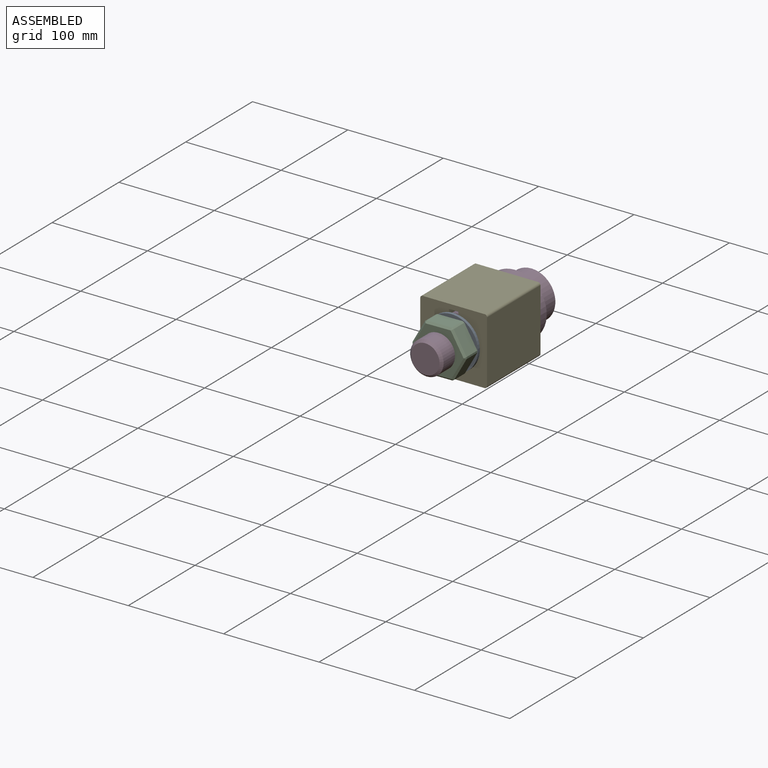
[diagram: assembled view]
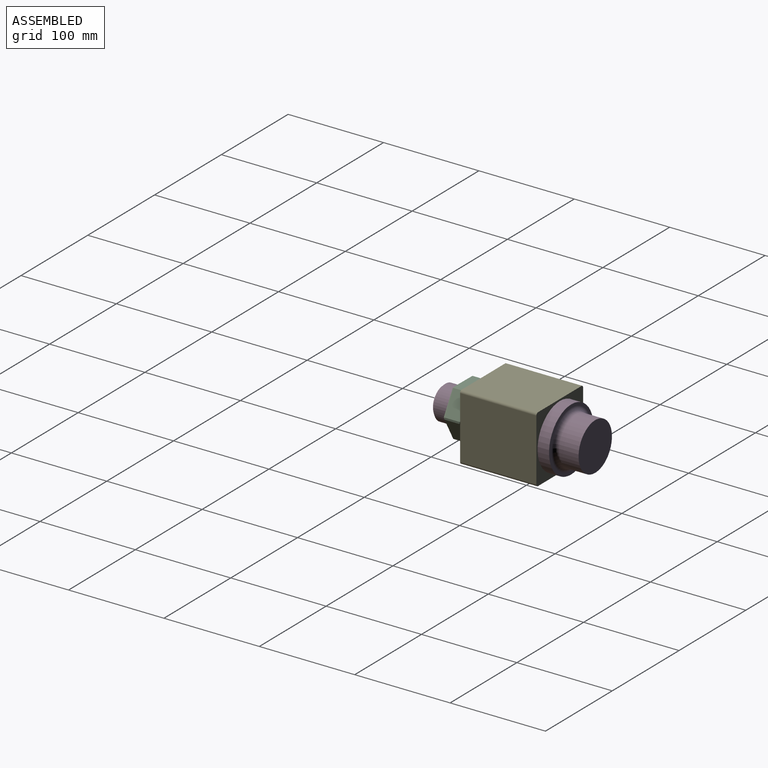
[diagram: assembled view, second angle]
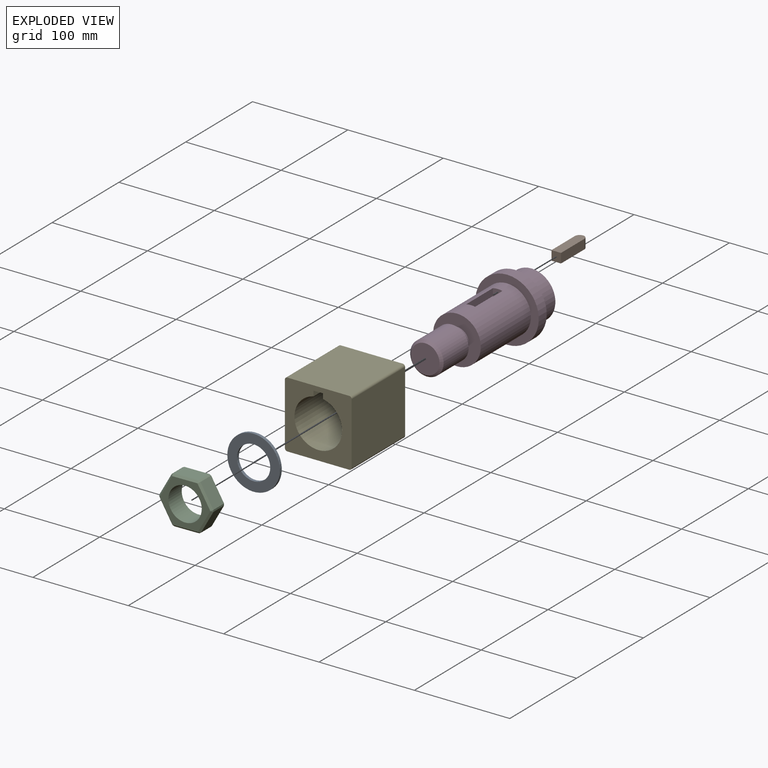
[diagram: exploded view]
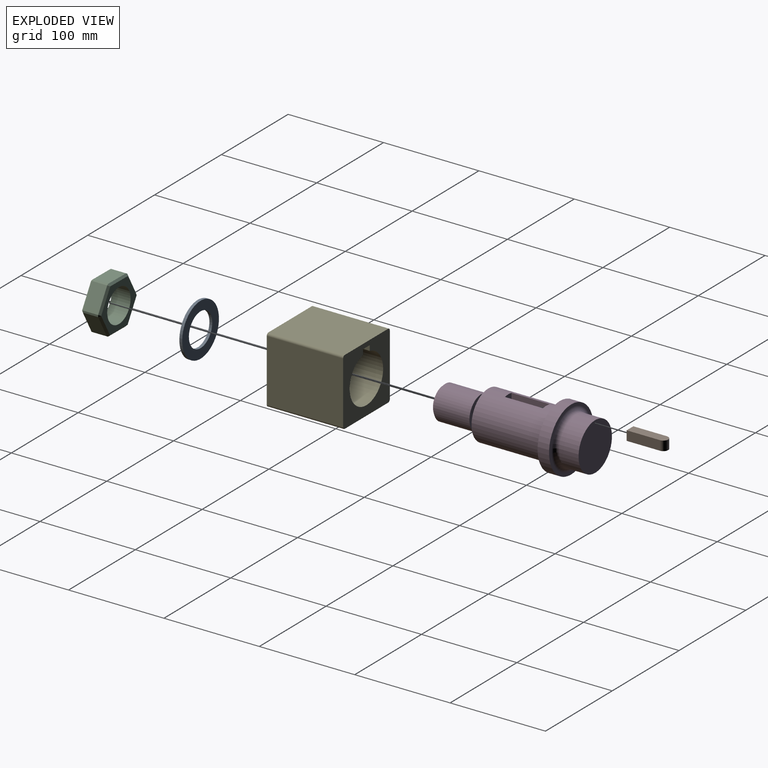
[diagram: exploded view, second angle]
ASSEMBLY  parts=5 mates=10
PART A: 4 faces, bbox 55x55x3 mm
  f0: cylinder r=17.5mm len=35mm, axis (0,0,-1), area 329.9mm2, adj f2,f3
  f1: cylinder r=27.5mm len=55mm, axis (0,0,-1), area 518.4mm2, adj f2,f3
  f2: plane 55x55mm, normal (0,0,1), area 1413.7mm2, adj f0,f1
  f3: plane 55x55mm, normal (0,0,-1), area 1413.7mm2, adj f0,f1
PART B: 6 faces, bbox 10x40x10 mm
  f0: plane 35x10mm, normal (1,0,0), area 350mm2, adj f1,f3,f4,f5
  f1: plane 10x10mm, normal (0,1,0), area 100mm2, adj f0,f2,f3,f4
  f2: plane 35x10mm, normal (-1,0,0), area 350mm2, adj f1,f3,f4,f5
  f3: plane 40x10mm, normal (0,0,1), area 389.3mm2, adj f0,f1,f2,f5
  f4: plane 40x10mm, normal (0,0,-1), area 389.3mm2, adj f0,f1,f2,f5
  f5: cylinder r=5mm len=10mm, axis (0,0,-1), area 157.1mm2, adj f0,f2,f3,f4
PART C: 39 faces, bbox 56.6x50.3x20 mm
  f0: plane 22.87x16mm, normal (0.86,-0.51,0), area 424.9mm2, adj f14,f23,f24,f25
  f1: plane 23.13x16mm, normal (0.87,0.49,0), area 424.9mm2, adj f9,f13,f14,f15
  f2: plane 26.56x16mm, normal (0.01,1,0), area 424.9mm2, adj f9,f12,f16,f17
  f3: plane 22.87x16mm, normal (-0.86,0.51,0), area 424.9mm2, adj f17,f22,f26,f27
  f4: plane 23.13x16mm, normal (-0.87,-0.49,0), area 424.9mm2, adj f27,f32,f35,f38
  f5: cylinder r=17.5mm len=35mm, axis (0,0,-1), area 2199.1mm2, adj f7,f8
  f6: plane 26.56x16mm, normal (-0.01,-1,0), area 424.9mm2, adj f24,f33,f34,f38
  f7: plane 53.11x46.27mm, normal (0,0,1), area 870.4mm2, adj f5,f12,f13,f22,f23,f32,f33
  f8: plane 53.11x46.27mm, normal (0,0,-1), area 870.4mm2, adj f5,f15,f16,f25,f26,f34,f35
  f9: plane 16x1.72mm, normal (0.51,0.86,0), area 32mm2, adj f1,f2,f10,f11
  f10: plane 2x2mm, normal (0.38,0.65,0.65), area 2.6mm2, adj f9,f12,f13
  f11: plane 2x2mm, normal (0.38,0.65,-0.65), area 2.6mm2, adj f9,f15,f16
  f12: plane 26.58x2.27mm, normal (0.01,0.71,0.71), area 75.1mm2, adj f2,f7,f10,f18
  f13: plane 24.12x14.79mm, normal (0.62,0.35,0.71), area 75.1mm2, adj f1,f7,f10,f19
  f14: plane 16x2mm, normal (1,-0.01,0), area 32mm2, adj f0,f1,f19,f20
  f15: plane 24.12x14.79mm, normal (0.62,0.35,-0.71), area 75.1mm2, adj f1,f8,f11,f20
  f16: plane 26.58x2.27mm, normal (0.01,0.71,-0.71), area 75.1mm2, adj f2,f8,f11,f21
  f17: plane 16x1.74mm, normal (-0.49,0.87,0), area 32mm2, adj f2,f3,f18,f21
  f18: plane 2x2mm, normal (-0.37,0.66,0.65), area 2.6mm2, adj f12,f17,f22
  f19: plane 2x2mm, normal (0.76,-0.01,0.65), area 2.6mm2, adj f13,f14,f23
  f20: plane 2x2mm, normal (0.76,-0.01,-0.65), area 2.6mm2, adj f14,f15,f25
  f21: plane 2x2mm, normal (-0.37,0.66,-0.65), area 2.6mm2, adj f16,f17,f26
  f22: plane 23.88x15.23mm, normal (-0.61,0.36,0.71), area 75.1mm2, adj f3,f7,f18,f28
  f23: plane 23.88x15.23mm, normal (0.61,-0.36,0.71), area 75.1mm2, adj f0,f7,f19,f29
  f24: plane 16x1.74mm, normal (0.49,-0.87,0), area 32mm2, adj f0,f6,f29,f30
  f25: plane 23.88x15.23mm, normal (0.61,-0.36,-0.71), area 75.1mm2, adj f0,f8,f20,f30
  f26: plane 23.88x15.23mm, normal (-0.61,0.36,-0.71), area 75.1mm2, adj f3,f8,f21,f31
  f27: plane 16x2mm, normal (-1,0.01,0), area 32mm2, adj f3,f4,f28,f31
  f28: plane 2x2mm, normal (-0.76,0.01,0.65), area 2.6mm2, adj f22,f27,f32
  f29: plane 2x2mm, normal (0.37,-0.66,0.65), area 2.6mm2, adj f23,f24,f33
  f30: plane 2x2mm, normal (0.37,-0.66,-0.65), area 2.6mm2, adj f24,f25,f34
  f31: plane 2x2mm, normal (-0.76,0.01,-0.65), area 2.6mm2, adj f26,f27,f35
  f32: plane 24.12x14.79mm, normal (-0.62,-0.35,0.71), area 75.1mm2, adj f4,f7,f28,f36
  f33: plane 26.58x2.27mm, normal (-0.01,-0.71,0.71), area 75.1mm2, adj f6,f7,f29,f36
  f34: plane 26.58x2.27mm, normal (-0.01,-0.71,-0.71), area 75.1mm2, adj f6,f8,f30,f37
  f35: plane 24.12x14.79mm, normal (-0.62,-0.35,-0.71), area 75.1mm2, adj f4,f8,f31,f37
  f36: plane 2x2mm, normal (-0.38,-0.65,0.65), area 2.6mm2, adj f32,f33,f38
  f37: plane 2x2mm, normal (-0.38,-0.65,-0.65), area 2.6mm2, adj f34,f35,f38
  f38: plane 16x1.72mm, normal (-0.51,-0.86,0), area 32mm2, adj f4,f6,f36,f37
PART D: 18 faces, bbox 72.6x72.6x159.5 mm
  f0: cylinder r=25mm len=75mm, axis (0,0,-1), area 11378.3mm2, adj f1,f4,f13,f14,f15,f16
  f1: plane 50x50mm, normal (0,0,1), area 1472.6mm2, adj f0,f8
  f2: cylinder r=33.21mm len=66.43mm, axis (0,0,1), area 2504.3mm2, adj f3,f4
  f3: plane 66.43x66.43mm, normal (0,0,-1), area 638.4mm2, adj f2,f7
  f4: plane 66.43x66.43mm, normal (0,0,1), area 1502.3mm2, adj f0,f2
  f5: cylinder r=25mm len=50mm, axis (0,0,1), area 3141.6mm2, adj f6,f7
  f6: plane 50x50mm, normal (0,0,-1), area 1963.5mm2, adj f5
  f7: torus R=30mm, axis (0,0,-1), area 1323.4mm2, adj f3,f5
  f8: cylinder r=12.5mm len=25mm, axis (0,0,-1), area 589mm2, adj f1,f11
  f9: cylinder r=17.5mm len=37.5mm, axis (0,0,-1), area 4123.3mm2, adj f11,f12
  f10: plane 30x30mm, normal (0,0,1), area 706.9mm2, adj f12
  f11: plane 35x35mm, normal (0,0,-1), area 471.2mm2, adj f8,f9
  f12: cone r=15mm half-angle=45deg, axis (0,0,-1), area 361mm2, adj f9,f10
  f13: plane 10x7.99mm, normal (0,0,1), area 78.2mm2, adj f0,f15,f16,f17
  f14: plane 10x7.99mm, normal (0,0,-1), area 78.2mm2, adj f0,f15,f16,f17
  f15: plane 40x7.49mm, normal (0,-1,0), area 299.4mm2, adj f0,f13,f14,f17
  f16: plane 40x7.49mm, normal (0,1,0), area 299.4mm2, adj f0,f13,f14,f17
  f17: plane 40x10mm, normal (1,0,0), area 400mm2, adj f13,f14,f15,f16
PART E: 14 faces, bbox 70x80x70 mm
  f0: plane 80x10mm, normal (0,0,-1), area 800mm2, adj f1,f7,f8,f9
  f1: plane 80x5.51mm, normal (-1,0,0), area 440.4mm2, adj f0,f2,f8,f9
  f2: cylinder r=25mm len=80mm, axis (0,1,0), area 11760.9mm2, adj f1,f7,f8,f9
  f3: plane 80x65mm, normal (1,0,0), area 5200mm2, adj f8,f9,f10,f13
  f4: plane 80x65mm, normal (0,0,1), area 5200mm2, adj f8,f9,f10,f11
  f5: plane 80x65mm, normal (-1,0,0), area 5200mm2, adj f8,f9,f11,f12
  f6: plane 80x65mm, normal (0,0,-1), area 5200mm2, adj f8,f9,f12,f13
  f7: plane 80x5.51mm, normal (1,0,0), area 440.4mm2, adj f0,f2,f8,f9
  f8: plane 70x70mm, normal (0,-1,0), area 2879.5mm2, adj f0,f1,f2,f3,f4,f5,f6,f7
  f9: plane 70x70mm, normal (0,1,0), area 2879.5mm2, adj f0,f1,f2,f3,f4,f5,f6,f7
  f10: cylinder r=2.5mm len=80mm, axis (0,-1,0), area 314.2mm2, adj f3,f4,f8,f9
  f11: cylinder r=2.5mm len=80mm, axis (0,1,0), area 314.2mm2, adj f4,f5,f8,f9
  f12: cylinder r=2.5mm len=80mm, axis (0,-1,0), area 314.2mm2, adj f5,f6,f8,f9
  f13: cylinder r=2.5mm len=80mm, axis (0,1,0), area 314.2mm2, adj f3,f6,f8,f9
PLACE A rot(axis=(0,-0.71,0.71),180deg) t=(68.17,-167.33,42.55)mm
PLACE B rot(axis=(0,0,-1),180deg) t=(68.17,-121.4,59.56)mm
PLACE C rot(axis=(-1,0,0),90deg) t=(68.17,-190.33,42.55)mm
PLACE D rot(axis=(0.58,-0.58,0.58),120deg) t=(68.17,-87.33,42.55)mm
PLACE E t=(68.17,-87.33,42.55)mm
MATE parallel B.f1 <-> D.f14  axis (0,-1,0) through (68.17,-141.4,64.56)mm
MATE planar B.f4 <-> D.f17  axis (0,0,-1) through (68.17,-121.92,59.56)mm
MATE cylindrical D.f9 <-> C.f5  axis (0,1,0) through (68.17,-188.58,42.55)mm
MATE planar D.f16 <-> B.f2  axis (-1,0,0) through (73.17,-121.4,63.3)mm
MATE cylindrical D.f0 <-> E.f2  axis (0,1,0) through (68.17,-124.83,42.55)mm
MATE cylindrical A.f0 <-> D.f9  axis (0,-1,0) through (68.17,-170.33,42.55)mm
MATE planar D.f14 <-> B.f1  axis (0,1,0) through (68.17,-141.4,63.47)mm
MATE planar C.f7 <-> A.f1  axis (0,1,0) through (48.37,-170.33,30.85)mm
MATE parallel D.f15 <-> B.f0  axis (1,0,0) through (63.17,-121.4,67.04)mm
MATE planar A.f1 <-> E.f8  axis (0,1,0) through (68.17,-167.33,42.55)mm
